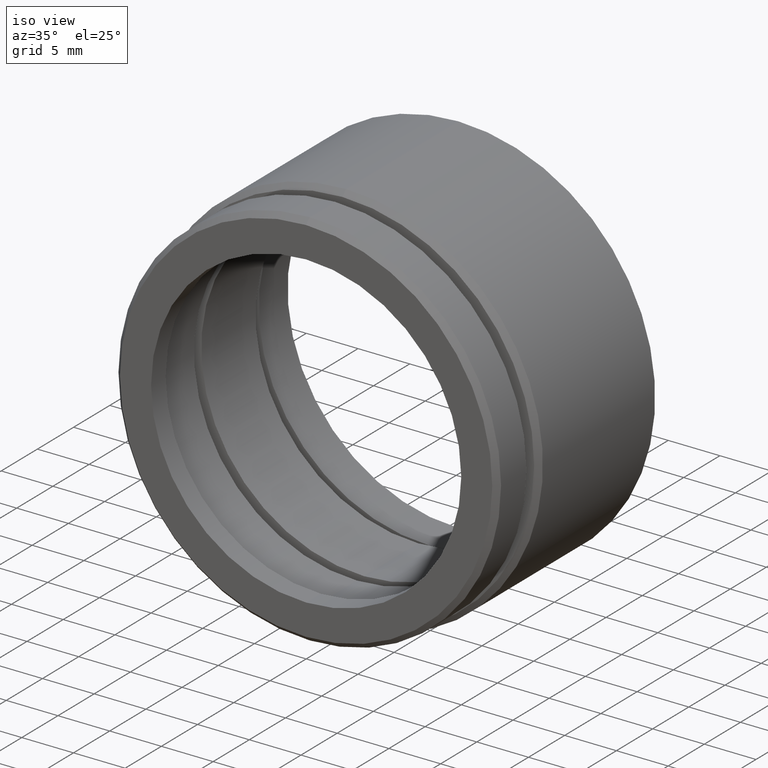
[diagram: clean part render]
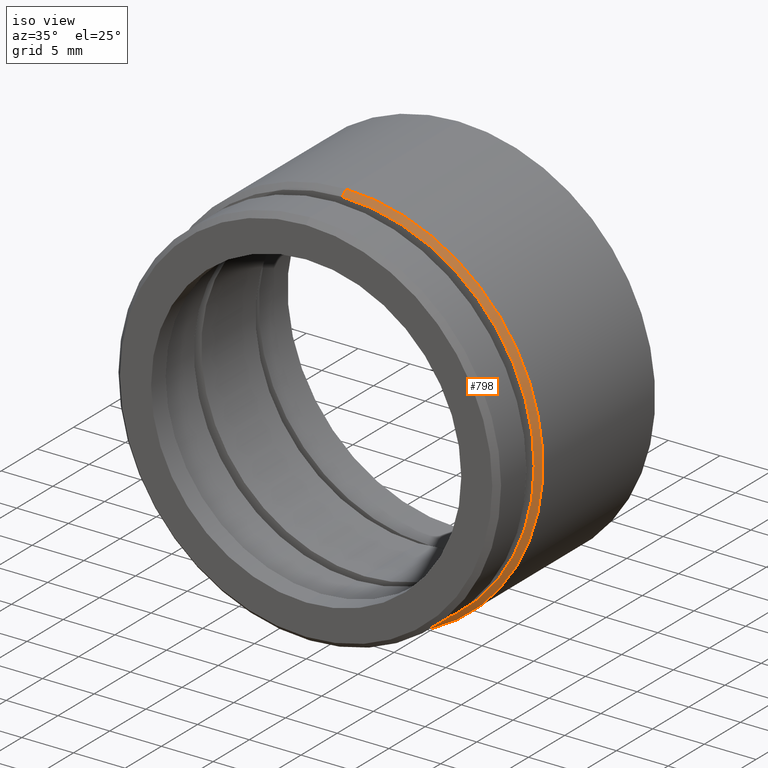
[diagram: same view with one face highlighted and labeled with its STEP entity id]
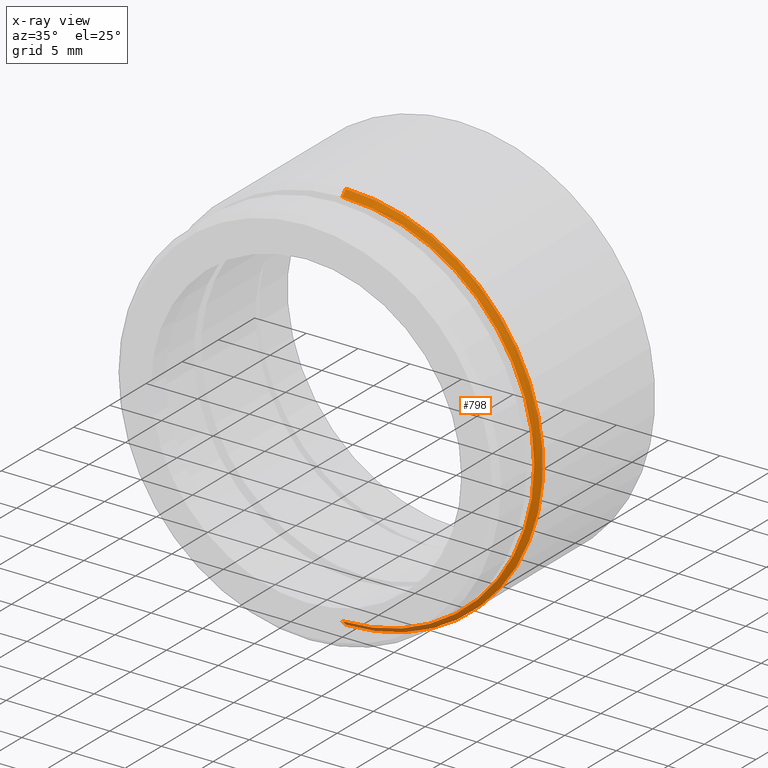
[diagram: x-ray of the same camera — body ghosted, the highlighted face saturated]
A machine part, iso view. The second image highlights one B-rep face of the part: STEP entity #798.
The next image is the same camera in x-ray: the body ghosted, the highlighted face saturated — about 7% of this face is hidden behind the body in this view.
In plain terms, the highlighted conical surface has half-angle 45 deg.
Its self-contained STEP definition (entity closure, byte-faithful):
#7 = CARTESIAN_POINT ( 'NONE',  ( 0.0000000000000000000, 5.000000000000000900, 0.0000000000000000000 ) ) ;
#22 = LINE ( 'NONE', #464, #218 ) ;
#38 = EDGE_CURVE ( 'NONE', #261, #136, #647, .T. ) ;
#50 = DIRECTION ( 'NONE',  ( -0.0000000000000000000, -1.000000000000000000, -0.0000000000000000000 ) ) ;
#67 = CARTESIAN_POINT ( 'NONE',  ( 0.0000000000000000000, 5.499999999999999100, 19.05000000000000100 ) ) ;
#106 = DIRECTION ( 'NONE',  ( 0.0000000000000000000, 1.000000000000000000, 0.0000000000000000000 ) ) ;
#129 = EDGE_CURVE ( 'NONE', #136, #807, #283, .T. ) ;
#136 = VERTEX_POINT ( 'NONE', #327 ) ;
#137 = CARTESIAN_POINT ( 'NONE',  ( 0.0000000000000000000, 5.000000000000000900, 0.0000000000000000000 ) ) ;
#165 = DIRECTION ( 'NONE',  ( 8.659560562354955000E-017, 0.7071067811865456900, -0.7071067811865493500 ) ) ;
#218 = VECTOR ( 'NONE', #782, 1000.000000000000000 ) ;
#229 = ORIENTED_EDGE ( 'NONE', *, *, #129, .T. ) ;
#248 = EDGE_CURVE ( 'NONE', #261, #1020, #976, .T. ) ;
#261 = VERTEX_POINT ( 'NONE', #666 ) ;
#283 = CIRCLE ( 'NONE', #874, 19.05000000000000100 ) ;
#308 = CARTESIAN_POINT ( 'NONE',  ( 0.0000000000000000000, 5.000000000000000900, 18.55000000000000100 ) ) ;
#314 = CONICAL_SURFACE ( 'NONE', #772, 18.55000000000000100, 0.7853981633974509400 ) ;
#325 = DIRECTION ( 'NONE',  ( 0.0000000000000000000, 0.0000000000000000000, 1.000000000000000000 ) ) ;
#327 = CARTESIAN_POINT ( 'NONE',  ( 2.332952152375707600E-015, 5.499999999999999100, -19.05000000000000100 ) ) ;
#378 = EDGE_LOOP ( 'NONE', ( #574, #518, #229, #618 ) ) ;
#464 = CARTESIAN_POINT ( 'NONE',  ( 0.0000000000000000000, 5.000000000000000900, 18.55000000000000100 ) ) ;
#500 = CARTESIAN_POINT ( 'NONE',  ( 2.271719812418340100E-015, 5.000000000000000900, -18.55000000000000100 ) ) ;
#518 = ORIENTED_EDGE ( 'NONE', *, *, #38, .T. ) ;
#574 = ORIENTED_EDGE ( 'NONE', *, *, #248, .F. ) ;
#596 = AXIS2_PLACEMENT_3D ( 'NONE', #7, #690, #912 ) ;
#618 = ORIENTED_EDGE ( 'NONE', *, *, #669, .F. ) ;
#647 = LINE ( 'NONE', #500, #924 ) ;
#666 = CARTESIAN_POINT ( 'NONE',  ( 2.302335982397023900E-015, 5.000000000000000900, -18.55000000000000100 ) ) ;
#669 = EDGE_CURVE ( 'NONE', #1020, #807, #22, .T. ) ;
#690 = DIRECTION ( 'NONE',  ( -0.0000000000000000000, -1.000000000000000000, -0.0000000000000000000 ) ) ;
#725 = FACE_OUTER_BOUND ( 'NONE', #378, .T. ) ;
#772 = AXIS2_PLACEMENT_3D ( 'NONE', #137, #106, #325 ) ;
#782 = DIRECTION ( 'NONE',  ( 0.0000000000000000000, 0.7071067811865456900, 0.7071067811865493500 ) ) ;
#798 = ADVANCED_FACE ( 'NONE', ( #725 ), #314, .T. ) ;
#807 = VERTEX_POINT ( 'NONE', #67 ) ;
#809 = CARTESIAN_POINT ( 'NONE',  ( 0.0000000000000000000, 5.499999999999999100, 0.0000000000000000000 ) ) ;
#874 = AXIS2_PLACEMENT_3D ( 'NONE', #809, #50, #958 ) ;
#912 = DIRECTION ( 'NONE',  ( 0.0000000000000000000, 0.0000000000000000000, -1.000000000000000000 ) ) ;
#924 = VECTOR ( 'NONE', #165, 1000.000000000000000 ) ;
#958 = DIRECTION ( 'NONE',  ( 0.0000000000000000000, 0.0000000000000000000, -1.000000000000000000 ) ) ;
#976 = CIRCLE ( 'NONE', #596, 18.55000000000000100 ) ;
#1020 = VERTEX_POINT ( 'NONE', #308 ) ;